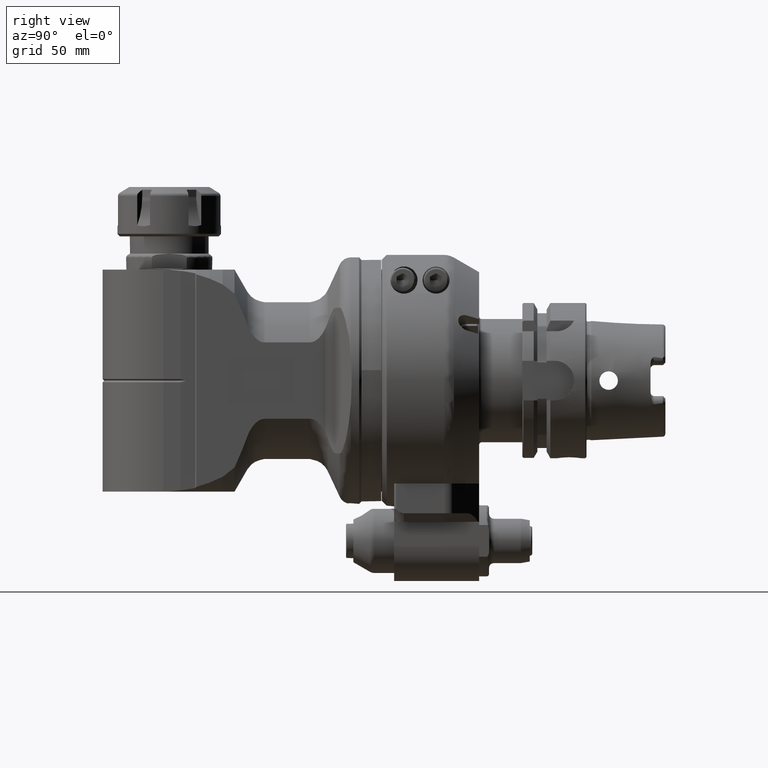
[diagram: clean part render]
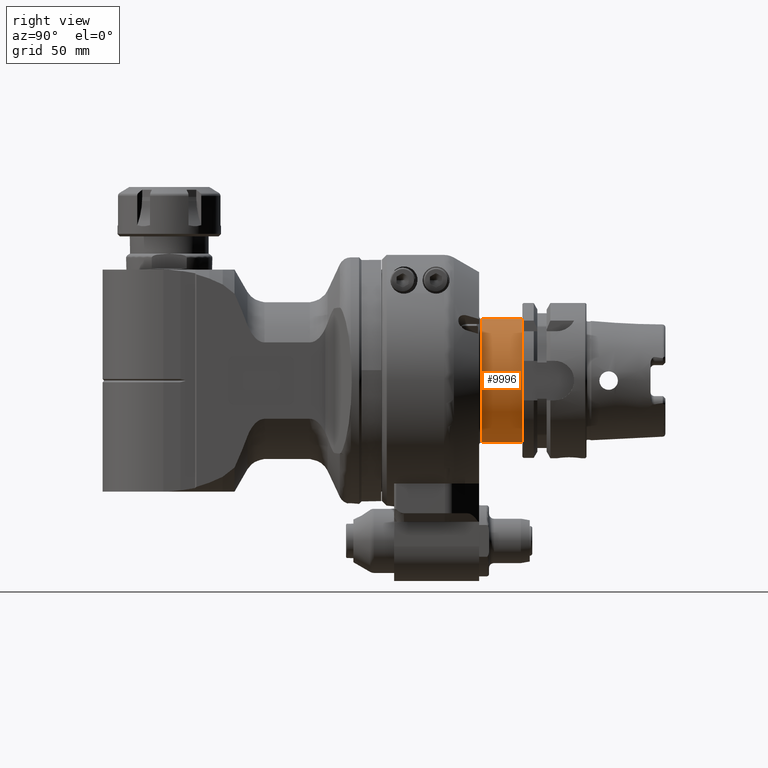
[diagram: same view with one face highlighted and labeled with its STEP entity id]
A machine part, right view. The second image highlights one B-rep face of the part: STEP entity #9996.
In plain terms, the highlighted cylindrical surface (bore or boss wall) has radius 25 mm, axis along (0, -1, 0).
Its self-contained STEP definition (entity closure, byte-faithful):
#748=CYLINDRICAL_SURFACE('',#11078,25.);
#1063=CIRCLE('',#11075,25.);
#1065=CIRCLE('',#11077,25.);
#1066=CIRCLE('',#11079,25.);
#1593=FACE_OUTER_BOUND('',#2215,.T.);
#2215=EDGE_LOOP('',(#7801,#7802,#7803,#7804,#7805));
#2834=LINE('',#17079,#3461);
#3461=VECTOR('',#13084,25.);
#4295=VERTEX_POINT('',#17072);
#4296=VERTEX_POINT('',#17073);
#4297=VERTEX_POINT('',#17078);
#5529=EDGE_CURVE('',#4295,#4296,#1063,.T.);
#5531=EDGE_CURVE('',#4296,#4295,#1065,.T.);
#5532=EDGE_CURVE('',#4295,#4297,#2834,.T.);
#5533=EDGE_CURVE('',#4297,#4297,#1066,.T.);
#7801=ORIENTED_EDGE('',*,*,#5529,.F.);
#7802=ORIENTED_EDGE('',*,*,#5532,.T.);
#7803=ORIENTED_EDGE('',*,*,#5533,.F.);
#7804=ORIENTED_EDGE('',*,*,#5532,.F.);
#7805=ORIENTED_EDGE('',*,*,#5531,.F.);
#9996=ADVANCED_FACE('',(#1593),#748,.T.);
#11075=AXIS2_PLACEMENT_3D('',#17074,#13076,#13077);
#11077=AXIS2_PLACEMENT_3D('',#17076,#13080,#13081);
#11078=AXIS2_PLACEMENT_3D('',#17077,#13082,#13083);
#11079=AXIS2_PLACEMENT_3D('',#17080,#13085,#13086);
#13076=DIRECTION('center_axis',(0.,0.,-1.));
#13077=DIRECTION('ref_axis',(1.,0.,0.));
#13080=DIRECTION('center_axis',(0.,0.,-1.));
#13081=DIRECTION('ref_axis',(1.,0.,0.));
#13082=DIRECTION('center_axis',(0.,0.,-1.));
#13083=DIRECTION('ref_axis',(-1.,0.,0.));
#13084=DIRECTION('',(0.,0.,1.));
#13085=DIRECTION('center_axis',(0.,0.,1.));
#13086=DIRECTION('ref_axis',(-0.322000000000014,-0.94673966854674,0.));
#17072=CARTESIAN_POINT('',(25.,-3.06161699786838E-15,8.495));
#17073=CARTESIAN_POINT('',(-25.,-1.65327317884884E-14,8.495));
#17074=CARTESIAN_POINT('Origin',(0.,-1.347111479062E-14,8.495));
#17076=CARTESIAN_POINT('Origin',(0.,-1.347111479062E-14,8.495));
#17077=CARTESIAN_POINT('Origin',(0.,0.,18.445));
#17078=CARTESIAN_POINT('',(25.,-3.06161699786838E-15,24.995));
#17079=CARTESIAN_POINT('',(25.,-3.06161699786838E-15,18.445));
#17080=CARTESIAN_POINT('Origin',(0.,0.,24.995));